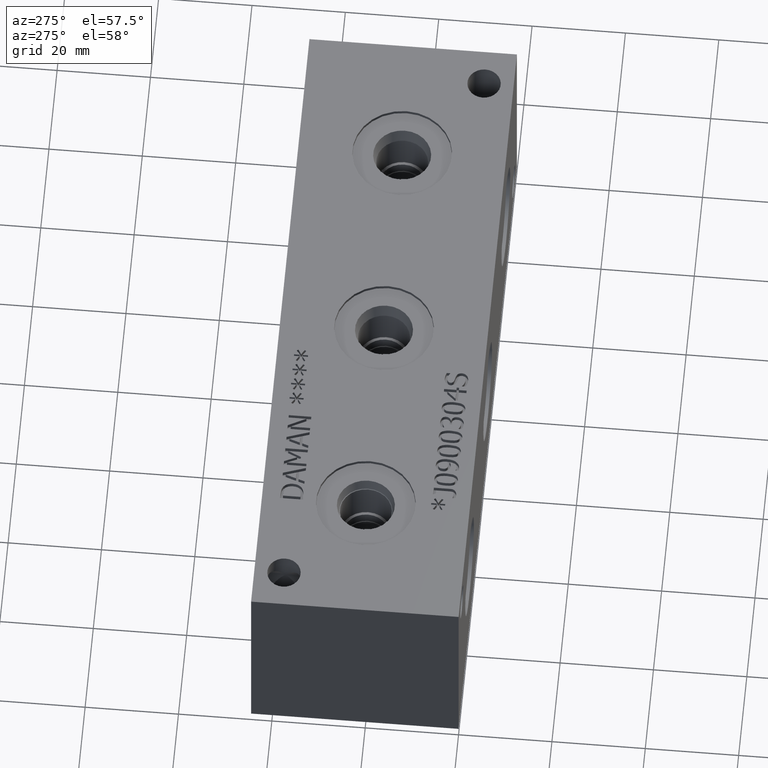
[diagram: clean part render]
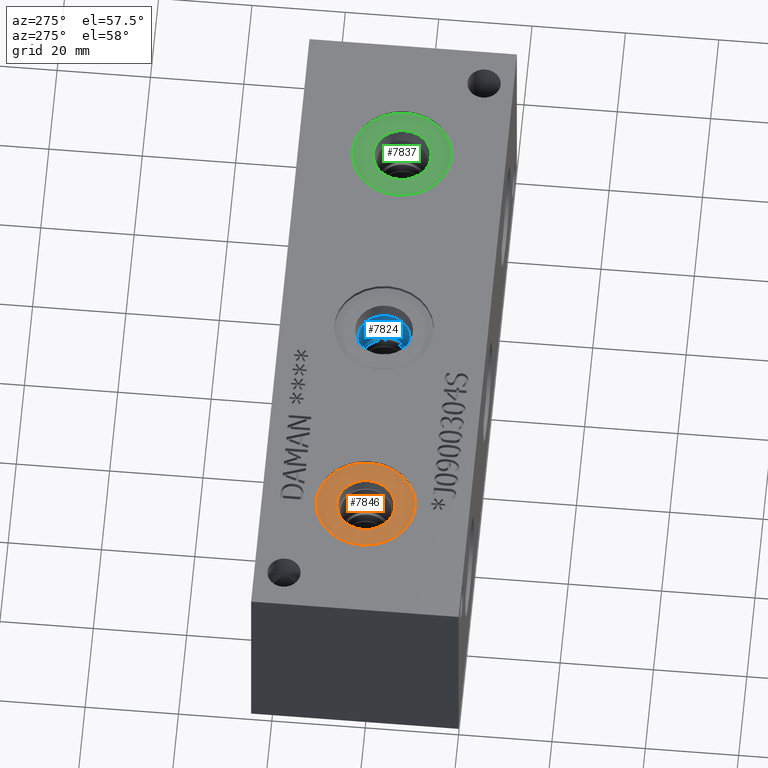
[diagram: same view with three faces highlighted in distinct colors, each labeled with its STEP entity id]
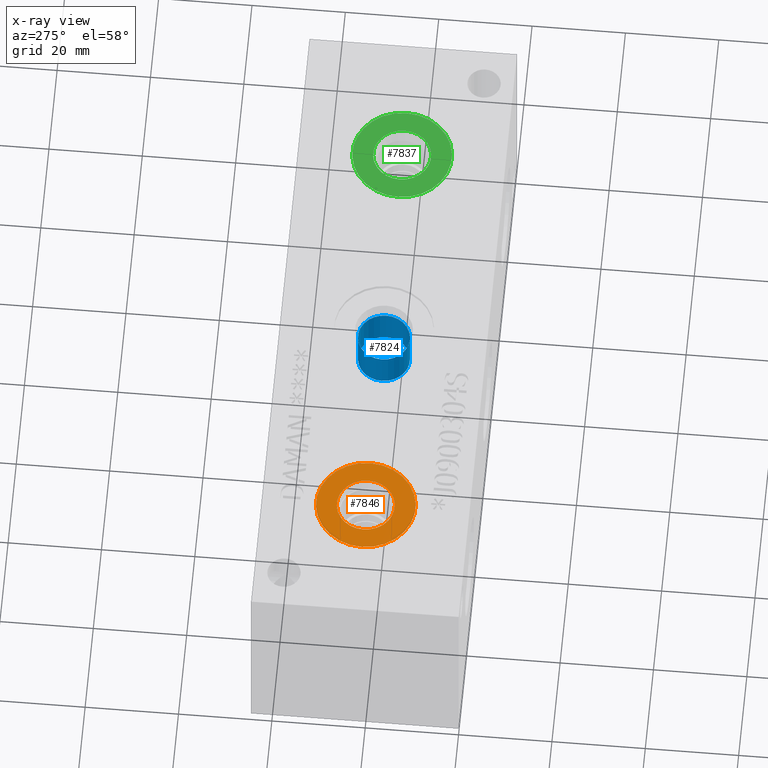
[diagram: x-ray of the same camera — body ghosted, the three highlighted faces saturated]
A machine part, auxiliary view with three faces highlighted in distinct colors.
The next image is the same camera in x-ray (body ghosted, the three faces saturated) — at least one of them is partly hidden behind the body in this view.
Their STEP definitions:

[orange] entity #7846 — the highlighted planar face has unit normal (0, 0, -1).
#204=CIRCLE('',#8264,10.6426);
#205=CIRCLE('',#8265,10.6426);
#206=CIRCLE('',#8267,6.1976);
#207=CIRCLE('',#8268,6.1976);
#262=FACE_BOUND('',#1326,.T.);
#487=PLANE('',#8266);
#879=FACE_OUTER_BOUND('',#1325,.T.);
#1325=EDGE_LOOP('',(#6939,#6940));
#1326=EDGE_LOOP('',(#6941,#6942));
#3731=VERTEX_POINT('',#13536);
#3732=VERTEX_POINT('',#13538);
#3733=VERTEX_POINT('',#13542);
#3734=VERTEX_POINT('',#13543);
#4807=EDGE_CURVE('',#3731,#3732,#204,.T.);
#4808=EDGE_CURVE('',#3732,#3731,#205,.T.);
#4809=EDGE_CURVE('',#3733,#3734,#206,.T.);
#4810=EDGE_CURVE('',#3734,#3733,#207,.T.);
#6939=ORIENTED_EDGE('',*,*,#4808,.F.);
#6940=ORIENTED_EDGE('',*,*,#4807,.F.);
#6941=ORIENTED_EDGE('',*,*,#4809,.T.);
#6942=ORIENTED_EDGE('',*,*,#4810,.T.);
#7846=ADVANCED_FACE('',(#879,#262),#487,.F.);
#8264=AXIS2_PLACEMENT_3D('',#13539,#9781,#9782);
#8265=AXIS2_PLACEMENT_3D('',#13540,#9783,#9784);
#8266=AXIS2_PLACEMENT_3D('',#13541,#9785,#9786);
#8267=AXIS2_PLACEMENT_3D('',#13544,#9787,#9788);
#8268=AXIS2_PLACEMENT_3D('',#13545,#9789,#9790);
#9781=DIRECTION('center_axis',(0.,0.,-1.));
#9782=DIRECTION('ref_axis',(1.,0.,0.));
#9783=DIRECTION('center_axis',(0.,0.,-1.));
#9784=DIRECTION('ref_axis',(1.,0.,0.));
#9785=DIRECTION('center_axis',(0.,0.,-1.));
#9786=DIRECTION('ref_axis',(-1.,0.,0.));
#9787=DIRECTION('center_axis',(0.,0.,-1.));
#9788=DIRECTION('ref_axis',(1.,0.,0.));
#9789=DIRECTION('center_axis',(0.,0.,-1.));
#9790=DIRECTION('ref_axis',(1.,0.,0.));
#13536=CARTESIAN_POINT('',(16.3322,22.225,43.6626));
#13538=CARTESIAN_POINT('',(37.6174,22.225,43.6626));
#13539=CARTESIAN_POINT('Origin',(26.9748,22.225,43.6626));
#13540=CARTESIAN_POINT('Origin',(26.9748,22.225,43.6626));
#13541=CARTESIAN_POINT('Origin',(33.1724,22.225,43.6626));
#13542=CARTESIAN_POINT('',(33.1724,22.225,43.6626));
#13543=CARTESIAN_POINT('',(20.7772,22.225,43.6626));
#13544=CARTESIAN_POINT('Origin',(26.9748,22.225,43.6626));
#13545=CARTESIAN_POINT('Origin',(26.9748,22.225,43.6626));

[blue] entity #7824 — the highlighted cylindrical surface (bore or boss wall) has radius 5.5626 mm, axis along (0, 0, 1).
#85=CYLINDRICAL_SURFACE('',#8219,5.5626);
#178=CIRCLE('',#8216,5.5626);
#179=CIRCLE('',#8217,5.5626);
#181=CIRCLE('',#8220,5.5626);
#857=FACE_OUTER_BOUND('',#1299,.T.);
#1299=EDGE_LOOP('',(#6828,#6829,#6830,#6831,#6832));
#2036=LINE('',#13453,#2756);
#2756=VECTOR('',#9677,5.5626);
#3704=VERTEX_POINT('',#13444);
#3705=VERTEX_POINT('',#13445);
#3707=VERTEX_POINT('',#13451);
#4763=EDGE_CURVE('',#3704,#3705,#178,.T.);
#4764=EDGE_CURVE('',#3705,#3704,#179,.T.);
#4766=EDGE_CURVE('',#3707,#3707,#181,.T.);
#4767=EDGE_CURVE('',#3707,#3705,#2036,.T.);
#6828=ORIENTED_EDGE('',*,*,#4766,.F.);
#6829=ORIENTED_EDGE('',*,*,#4767,.T.);
#6830=ORIENTED_EDGE('',*,*,#4763,.F.);
#6831=ORIENTED_EDGE('',*,*,#4764,.F.);
#6832=ORIENTED_EDGE('',*,*,#4767,.F.);
#7824=ADVANCED_FACE('',(#857),#85,.F.);
#8216=AXIS2_PLACEMENT_3D('',#13446,#9667,#9668);
#8217=AXIS2_PLACEMENT_3D('',#13447,#9669,#9670);
#8219=AXIS2_PLACEMENT_3D('',#13450,#9673,#9674);
#8220=AXIS2_PLACEMENT_3D('',#13452,#9675,#9676);
#9667=DIRECTION('center_axis',(0.,0.,1.));
#9668=DIRECTION('ref_axis',(1.,0.,0.));
#9669=DIRECTION('center_axis',(0.,0.,1.));
#9670=DIRECTION('ref_axis',(1.,0.,0.));
#9673=DIRECTION('center_axis',(0.,0.,1.));
#9674=DIRECTION('ref_axis',(1.,0.,0.));
#9675=DIRECTION('center_axis',(0.,0.,-1.));
#9676=DIRECTION('ref_axis',(1.,0.,0.));
#9677=DIRECTION('',(0.,0.,-1.));
#13444=CARTESIAN_POINT('',(76.9874,22.225,32.1564));
#13445=CARTESIAN_POINT('',(65.8622,22.225,32.1564));
#13446=CARTESIAN_POINT('Origin',(71.4248,22.225,32.1564));
#13447=CARTESIAN_POINT('Origin',(71.4248,22.225,32.1564));
#13450=CARTESIAN_POINT('Origin',(71.4248,22.225,38.3032));
#13451=CARTESIAN_POINT('',(65.8622,22.225,40.6733798804812));
#13452=CARTESIAN_POINT('Origin',(71.4248,22.225,40.6733798804812));
#13453=CARTESIAN_POINT('',(65.8622,22.225,38.3032));

[green] entity #7837 — the highlighted planar face has unit normal (0, 0, 1).
#195=CIRCLE('',#8247,10.6426);
#196=CIRCLE('',#8248,10.6426);
#197=CIRCLE('',#8249,6.1976);
#260=FACE_BOUND('',#1315,.T.);
#485=PLANE('',#8246);
#870=FACE_OUTER_BOUND('',#1314,.T.);
#1314=EDGE_LOOP('',(#6894,#6895));
#1315=EDGE_LOOP('',(#6896));
#3721=VERTEX_POINT('',#13503);
#3722=VERTEX_POINT('',#13504);
#3723=VERTEX_POINT('',#13507);
#4791=EDGE_CURVE('',#3721,#3722,#195,.T.);
#4792=EDGE_CURVE('',#3722,#3721,#196,.T.);
#4793=EDGE_CURVE('',#3723,#3723,#197,.T.);
#6894=ORIENTED_EDGE('',*,*,#4791,.T.);
#6895=ORIENTED_EDGE('',*,*,#4792,.T.);
#6896=ORIENTED_EDGE('',*,*,#4793,.F.);
#7837=ADVANCED_FACE('',(#870,#260),#485,.T.);
#8246=AXIS2_PLACEMENT_3D('',#13502,#9738,#9739);
#8247=AXIS2_PLACEMENT_3D('',#13505,#9740,#9741);
#8248=AXIS2_PLACEMENT_3D('',#13506,#9742,#9743);
#8249=AXIS2_PLACEMENT_3D('',#13508,#9744,#9745);
#9738=DIRECTION('center_axis',(0.,0.,1.));
#9739=DIRECTION('ref_axis',(1.,0.,0.));
#9740=DIRECTION('center_axis',(0.,0.,1.));
#9741=DIRECTION('ref_axis',(1.,0.,0.));
#9742=DIRECTION('center_axis',(0.,0.,1.));
#9743=DIRECTION('ref_axis',(1.,0.,0.));
#9744=DIRECTION('center_axis',(0.,0.,1.));
#9745=DIRECTION('ref_axis',(1.,0.,0.));
#13502=CARTESIAN_POINT('Origin',(115.8748,22.225,43.6626));
#13503=CARTESIAN_POINT('',(126.5174,22.225,43.6626));
#13504=CARTESIAN_POINT('',(105.2322,22.225,43.6626));
#13505=CARTESIAN_POINT('Origin',(115.8748,22.225,43.6626));
#13506=CARTESIAN_POINT('Origin',(115.8748,22.225,43.6626));
#13507=CARTESIAN_POINT('',(109.6772,22.225,43.6626));
#13508=CARTESIAN_POINT('Origin',(115.8748,22.225,43.6626));